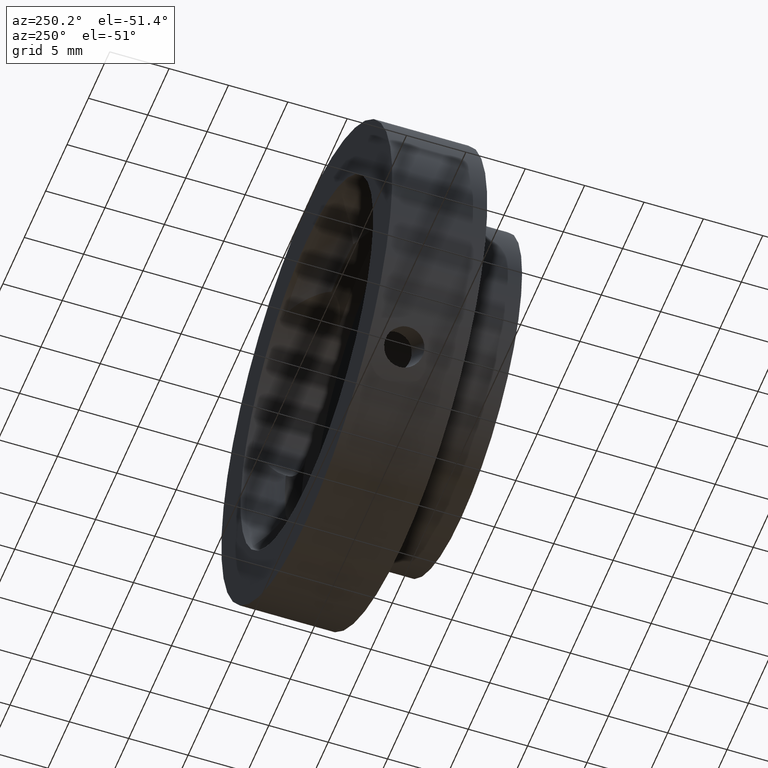
[diagram: clean part render]
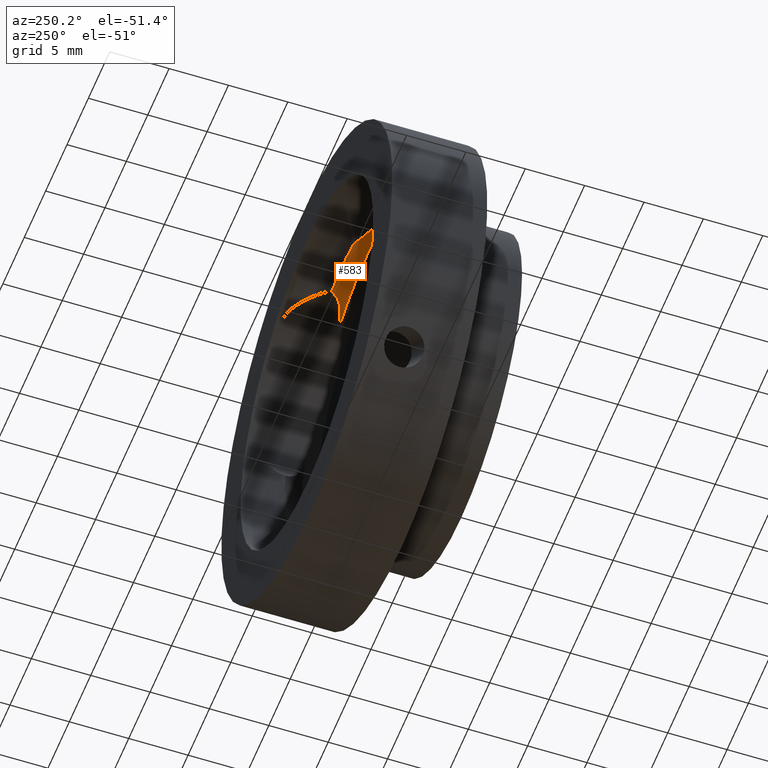
[diagram: same view with one face highlighted and labeled with its STEP entity id]
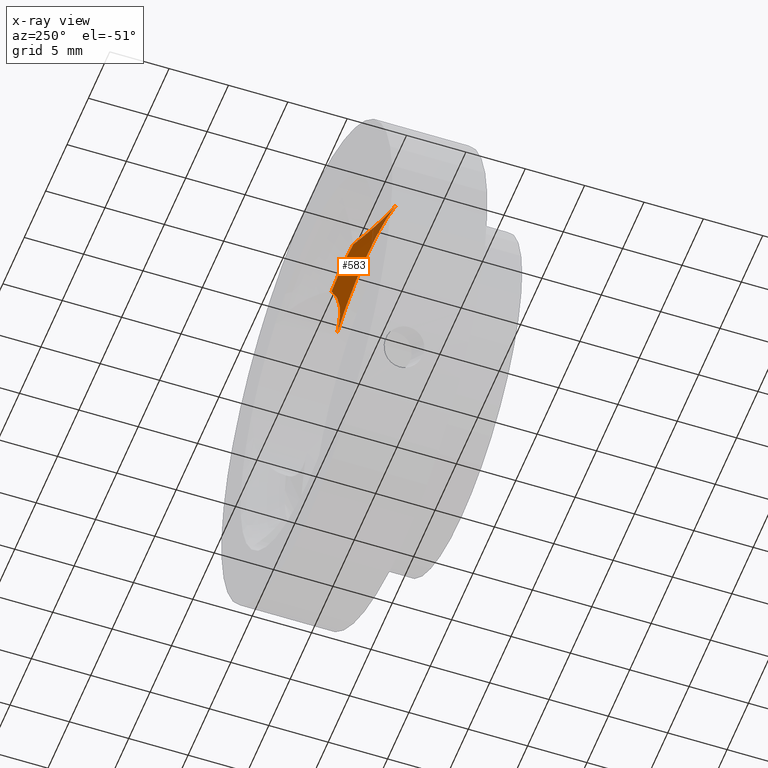
[diagram: x-ray of the same camera — body ghosted, the highlighted face saturated]
A machine part, auxiliary view. The second image highlights one B-rep face of the part: STEP entity #583.
The next image is the same camera in x-ray: the body ghosted, the highlighted face saturated — about 10% of this face is hidden behind the body in this view.
In plain terms, the highlighted conical surface has half-angle 45 deg.
Its self-contained STEP definition (entity closure, byte-faithful):
#8 = AXIS2_PLACEMENT_3D ( 'NONE', #210, #297, #21 ) ;
#21 = DIRECTION ( 'NONE',  ( -1.000000000000000000, 0.0000000000000000000, -3.491481338843133400E-015 ) ) ;
#42 = DIRECTION ( 'NONE',  ( 0.0000000000000000000, 1.000000000000000000, 0.0000000000000000000 ) ) ;
#58 = CARTESIAN_POINT ( 'NONE',  ( 2.546616459341369200, 0.9967213114754001100, 13.25762967536096700 ) ) ;
#63 = CARTESIAN_POINT ( 'NONE',  ( 5.546432211812594400, -0.7932217969247430400, 14.24997908695596000 ) ) ;
#82 = CARTESIAN_POINT ( 'NONE',  ( -6.803600343019577500, -1.003278688524598600, 13.92875962279541500 ) ) ;
#85 = VERTEX_POINT ( 'NONE', #1071 ) ;
#93 = CARTESIAN_POINT ( 'NONE',  ( -5.972995476481143500, -0.8970387337985447100, 14.18923731020141700 ) ) ;
#99 = CARTESIAN_POINT ( 'NONE',  ( -2.546616459341461500, 0.9967213114754001100, 13.25762967536094500 ) ) ;
#107 = CARTESIAN_POINT ( 'NONE',  ( 0.0000000000000000000, 0.9967213114754001100, 0.0000000000000000000 ) ) ;
#118 = DIRECTION ( 'NONE',  ( 0.0000000000000000000, 1.000000000000000000, 0.0000000000000000000 ) ) ;
#142 = EDGE_CURVE ( 'NONE', #85, #861, #811, .T. ) ;
#155 = CARTESIAN_POINT ( 'NONE',  ( 6.176855744736181800, -0.9353117202127894100, 14.14360691806052600 ) ) ;
#210 = CARTESIAN_POINT ( 'NONE',  ( 0.0000000000000000000, 0.9967213114754001100, 0.0000000000000000000 ) ) ;
#219 = DIRECTION ( 'NONE',  ( -1.000000000000000000, 0.0000000000000000000, -3.491481338843133400E-015 ) ) ;
#227 = EDGE_LOOP ( 'NONE', ( #1170, #1200, #932, #1056, #559 ) ) ;
#230 = DIRECTION ( 'NONE',  ( -1.000000000000000000, 0.0000000000000000000, -3.491481338843133400E-015 ) ) ;
#248 = CARTESIAN_POINT ( 'NONE',  ( 6.803041757980159900, -1.003278688524597700, 13.92904245048044100 ) ) ;
#270 = CARTESIAN_POINT ( 'NONE',  ( -4.136114009574487000, -0.2176041397599073600, 14.12195177037433200 ) ) ;
#285 = CARTESIAN_POINT ( 'NONE',  ( -4.719426488371900600, -0.5005679040371771000, 14.23647292475320300 ) ) ;
#297 = DIRECTION ( 'NONE',  ( 0.0000000000000000000, 1.000000000000000000, 0.0000000000000000000 ) ) ;
#298 = DIRECTION ( 'NONE',  ( 1.000000000000000000, 0.0000000000000000000, 3.491481338843133400E-015 ) ) ;
#307 = EDGE_CURVE ( 'NONE', #1032, #1091, #344, .T. ) ;
#344 = CIRCLE ( 'NONE', #8, 13.50000000000000200 ) ;
#355 = CARTESIAN_POINT ( 'NONE',  ( 3.590591951970580500, 0.1134677551651008000, 13.92857418999138700 ) ) ;
#367 = VERTEX_POINT ( 'NONE', #584 ) ;
#368 = CARTESIAN_POINT ( 'NONE',  ( -3.770200804390894800, -0.003546811837860654100, 14.00246224642833500 ) ) ;
#381 = CARTESIAN_POINT ( 'NONE',  ( -6.600826220187153500, -0.9896731535179073000, 14.01085047407636000 ) ) ;
#384 = EDGE_CURVE ( 'NONE', #861, #367, #1018, .T. ) ;
#396 = CONICAL_SURFACE ( 'NONE', #884, 13.50000000000000200, 0.7853981633974482800 ) ;
#442 = CARTESIAN_POINT ( 'NONE',  ( 7.001736115884971100, -1.003278688524598300, 13.82843777740320400 ) ) ;
#478 = CARTESIAN_POINT ( 'NONE',  ( -4.325741373005597800, -0.3171632405268984300, 14.16935429003620700 ) ) ;
#512 = CARTESIAN_POINT ( 'NONE',  ( 1.898202538678397600E-015, -1.003278688524598300, 15.50000000000000000 ) ) ;
#527 = CARTESIAN_POINT ( 'NONE',  ( 4.714881586952555100, -0.4986023736236331300, 14.23590202194612100 ) ) ;
#559 = ORIENTED_EDGE ( 'NONE', *, *, #384, .F. ) ;
#583 = ADVANCED_FACE ( 'NONE', ( #596 ), #396, .F. ) ;
#584 = CARTESIAN_POINT ( 'NONE',  ( 7.001736115884971100, -1.003278688524598300, 13.82843777740320400 ) ) ;
#596 = FACE_OUTER_BOUND ( 'NONE', #227, .T. ) ;
#602 = CARTESIAN_POINT ( 'NONE',  ( -0.0000000000000000000, -1.003278688524598300, 0.0000000000000000000 ) ) ;
#622 = CARTESIAN_POINT ( 'NONE',  ( 5.334539510549568300, -0.7298055232287437000, 14.26281579674993000 ) ) ;
#624 = CARTESIAN_POINT ( 'NONE',  ( 2.806462496403595800, 0.7222822628571877700, 13.48717289205862200 ) ) ;
#653 = CARTESIAN_POINT ( 'NONE',  ( -2.546616459341461500, 0.9967213114754001100, 13.25762967536094500 ) ) ;
#659 = CARTESIAN_POINT ( 'NONE',  ( -3.098813107772034700, 0.4666334739222360300, 13.68648844361473500 ) ) ;
#673 = CARTESIAN_POINT ( 'NONE',  ( -0.0000000000000000000, -1.003278688524598300, 0.0000000000000000000 ) ) ;
#717 = CARTESIAN_POINT ( 'NONE',  ( 5.966861569984832400, -0.8957008808188003900, 14.19033748546069200 ) ) ;
#722 = CARTESIAN_POINT ( 'NONE',  ( 4.322244689212637600, -0.3153793262255904000, 14.16854997819102700 ) ) ;
#735 = CARTESIAN_POINT ( 'NONE',  ( -7.001736115885067900, -1.003278688524598300, 13.82843777740315400 ) ) ;
#753 = CARTESIAN_POINT ( 'NONE',  ( -4.925028016251286700, -0.5848506972110261200, 14.25606654202589900 ) ) ;
#811 = CIRCLE ( 'NONE', #910, 15.50000000000000000 ) ;
#814 = CARTESIAN_POINT ( 'NONE',  ( 6.596226351702450000, -0.9893709893574089700, 14.01272181697024900 ) ) ;
#819 = B_SPLINE_CURVE_WITH_KNOTS ( 'NONE', 3,
 ( #735, #82, #381, #849, #93, #940, #1028, #753, #285, #478, #270, #368, #837, #659, #1126, #99 ),
 .UNSPECIFIED., .F., .F.,
 ( 4, 2, 2, 2, 2, 2, 2, 4 ),
 ( 0.0000000000000000000, 0.0006558006649841864300, 0.001311601329968372900, 0.001967401994952559300, 0.002623202659936745700, 0.003279003324920932600, 0.003934803989905118600, 0.005246405319873494000 ),
 .UNSPECIFIED. ) ;
#837 = CARTESIAN_POINT ( 'NONE',  ( -3.594159660575742900, 0.1110216883971043200, 13.93018955168542000 ) ) ;
#849 = CARTESIAN_POINT ( 'NONE',  ( -6.186634895889816300, -0.9368531738407619400, 14.14097572055835500 ) ) ;
#859 = DIRECTION ( 'NONE',  ( -0.0000000000000000000, -1.000000000000000000, 0.0000000000000000000 ) ) ;
#861 = VERTEX_POINT ( 'NONE', #512 ) ;
#884 = AXIS2_PLACEMENT_3D ( 'NONE', #107, #859, #298 ) ;
#888 = EDGE_CURVE ( 'NONE', #85, #1032, #819, .T. ) ;
#903 = CARTESIAN_POINT ( 'NONE',  ( 3.098503020026631000, 0.4670891400142354000, 13.68605292140626900 ) ) ;
#910 = AXIS2_PLACEMENT_3D ( 'NONE', #602, #42, #230 ) ;
#932 = ORIENTED_EDGE ( 'NONE', *, *, #307, .T. ) ;
#940 = CARTESIAN_POINT ( 'NONE',  ( -5.548632048319155400, -0.7939122239476887900, 14.24989257442927500 ) ) ;
#995 = CARTESIAN_POINT ( 'NONE',  ( 4.130831940302979200, -0.2147566127237200700, 14.12053651667044500 ) ) ;
#1018 = CIRCLE ( 'NONE', #1043, 15.50000000000000000 ) ;
#1028 = CARTESIAN_POINT ( 'NONE',  ( -5.339095620868328700, -0.7311872454261966200, 14.26256558010927800 ) ) ;
#1032 = VERTEX_POINT ( 'NONE', #653 ) ;
#1043 = AXIS2_PLACEMENT_3D ( 'NONE', #673, #118, #219 ) ;
#1056 = ORIENTED_EDGE ( 'NONE', *, *, #1161, .T. ) ;
#1071 = CARTESIAN_POINT ( 'NONE',  ( -7.001736115885067900, -1.003278688524598300, 13.82843777740315400 ) ) ;
#1086 = CARTESIAN_POINT ( 'NONE',  ( 3.763711891998182200, 0.0004995221339378684700, 14.00002358152522700 ) ) ;
#1091 = VERTEX_POINT ( 'NONE', #1146 ) ;
#1104 = B_SPLINE_CURVE_WITH_KNOTS ( 'NONE', 3,
 ( #58, #624, #903, #355, #1086, #995, #722, #527, #1182, #622, #63, #717, #155, #814, #248, #442 ),
 .UNSPECIFIED., .F., .F.,
 ( 4, 2, 2, 2, 2, 2, 2, 4 ),
 ( 0.0000000000000000000, 0.001303724358654573100, 0.001955586537981860500, 0.002607448717309148800, 0.003259310896636437000, 0.003911173075963725300, 0.004563035255291013200, 0.005214897434618301900 ),
 .UNSPECIFIED. ) ;
#1126 = CARTESIAN_POINT ( 'NONE',  ( -2.806246024532207200, 0.7225108918373873700, 13.48698166478314100 ) ) ;
#1146 = CARTESIAN_POINT ( 'NONE',  ( 2.546616459341369200, 0.9967213114754001100, 13.25762967536096700 ) ) ;
#1161 = EDGE_CURVE ( 'NONE', #1091, #367, #1104, .T. ) ;
#1170 = ORIENTED_EDGE ( 'NONE', *, *, #142, .F. ) ;
#1182 = CARTESIAN_POINT ( 'NONE',  ( 4.917071012963702100, -0.5818031807604005000, 14.25561013461350700 ) ) ;
#1200 = ORIENTED_EDGE ( 'NONE', *, *, #888, .T. ) ;